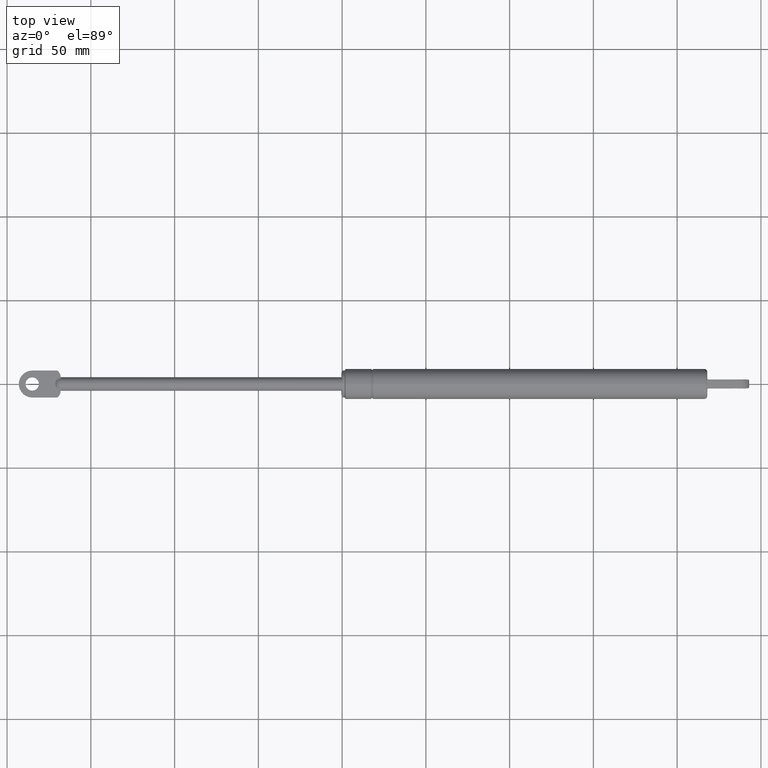
[diagram: clean part render]
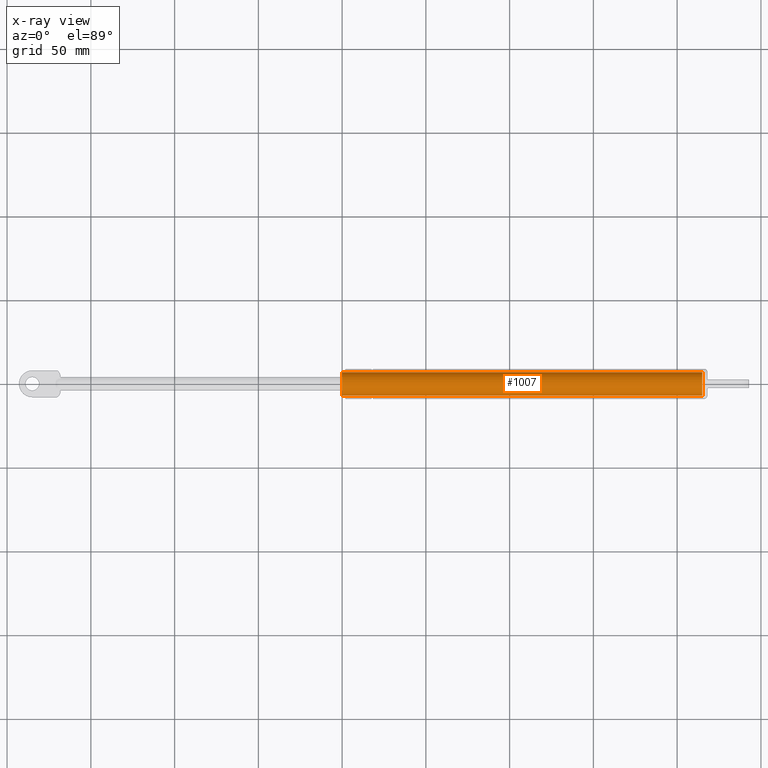
[diagram: x-ray — body ghosted, one internal face saturated and labeled with its STEP entity id]
A machine part, top view, then the same camera in x-ray: the body is ghosted and one INTERNAL B-rep face — a face not visible from any outside direction — is saturated and labeled: STEP entity #1007.
In plain terms, the highlighted cylindrical surface (bore or boss wall) has radius 7 mm, axis along (-1, 0, 0).
Its self-contained STEP definition (entity closure, byte-faithful):
#204=CYLINDRICAL_SURFACE('',#1098,7.);
#230=FACE_BOUND('',#356,.T.);
#278=FACE_OUTER_BOUND('',#355,.T.);
#355=EDGE_LOOP('',(#824));
#356=EDGE_LOOP('',(#825));
#436=CIRCLE('',#1099,7.);
#437=CIRCLE('',#1100,7.);
#511=VERTEX_POINT('',#1876);
#512=VERTEX_POINT('',#1878);
#628=EDGE_CURVE('',#511,#511,#436,.T.);
#629=EDGE_CURVE('',#512,#512,#437,.T.);
#824=ORIENTED_EDGE('',*,*,#628,.F.);
#825=ORIENTED_EDGE('',*,*,#629,.F.);
#1007=ADVANCED_FACE('',(#278,#230),#204,.F.);
#1098=AXIS2_PLACEMENT_3D('',#1875,#1289,#1290);
#1099=AXIS2_PLACEMENT_3D('',#1877,#1291,#1292);
#1100=AXIS2_PLACEMENT_3D('',#1879,#1293,#1294);
#1289=DIRECTION('center_axis',(-1.,0.,3.055691849906E-16));
#1290=DIRECTION('ref_axis',(0.,-1.,0.));
#1291=DIRECTION('center_axis',(1.,0.,-3.055691849906E-16));
#1292=DIRECTION('ref_axis',(0.,-1.,0.));
#1293=DIRECTION('center_axis',(-1.,0.,3.055691849906E-16));
#1294=DIRECTION('ref_axis',(0.,-1.,0.));
#1875=CARTESIAN_POINT('Origin',(107.5,0.,-3.28486873864895E-14));
#1876=CARTESIAN_POINT('',(-1.2222767399624E-15,-7.,3.73490107263278E-31));
#1877=CARTESIAN_POINT('Origin',(0.,0.,0.));
#1878=CARTESIAN_POINT('',(215.,-7.,-6.5697374772979E-14));
#1879=CARTESIAN_POINT('Origin',(215.,0.,-6.5697374772979E-14));